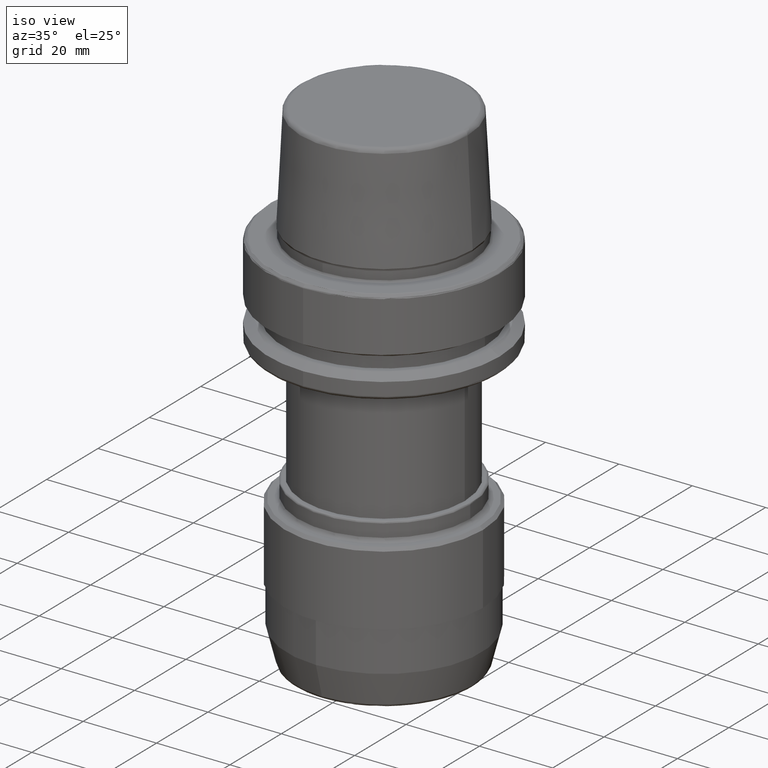
[diagram: clean part render]
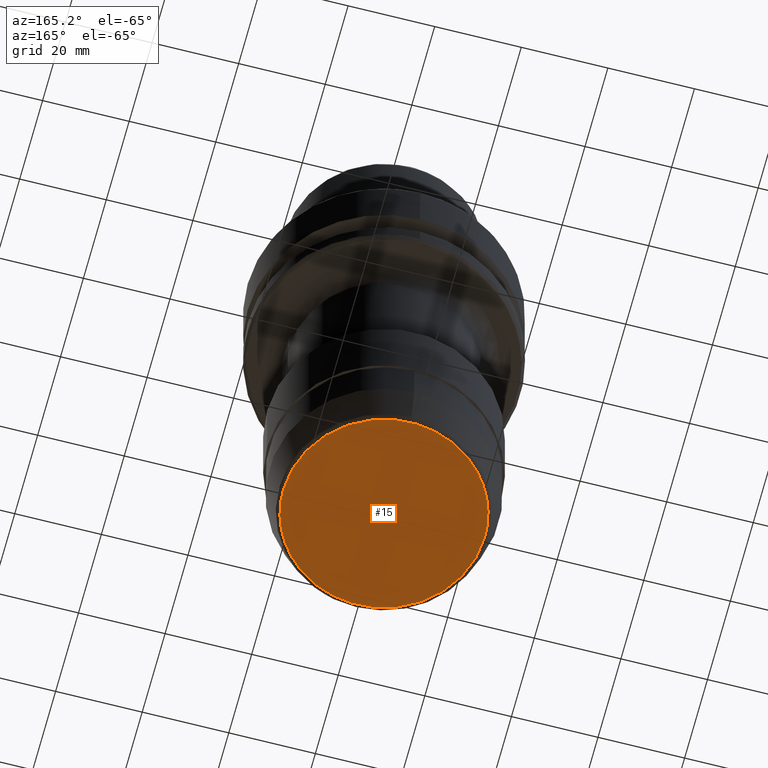
[diagram: tour spotlight — one face highlighted and labeled with its STEP entity id]
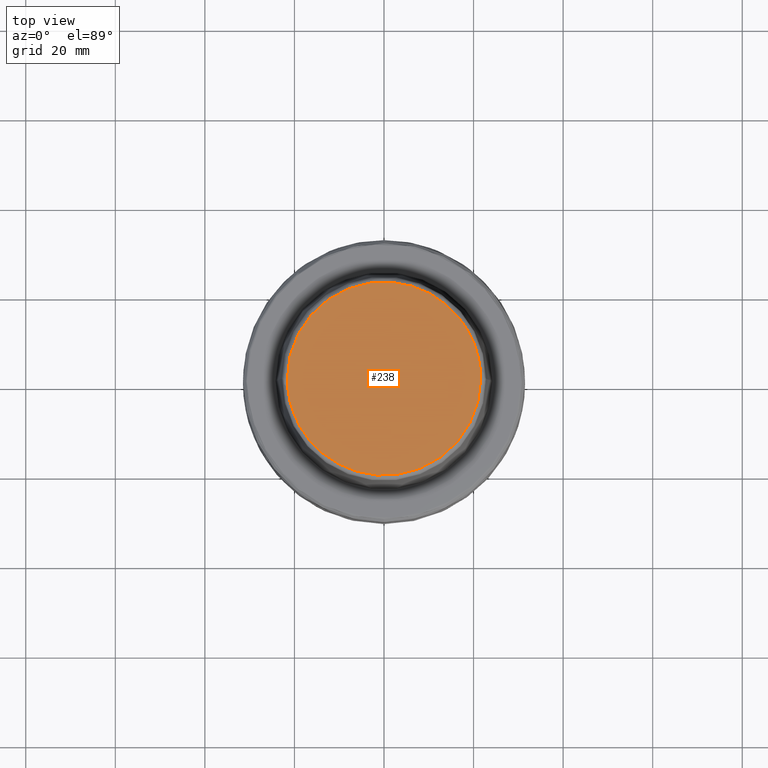
[diagram: tour spotlight — one face highlighted and labeled with its STEP entity id]
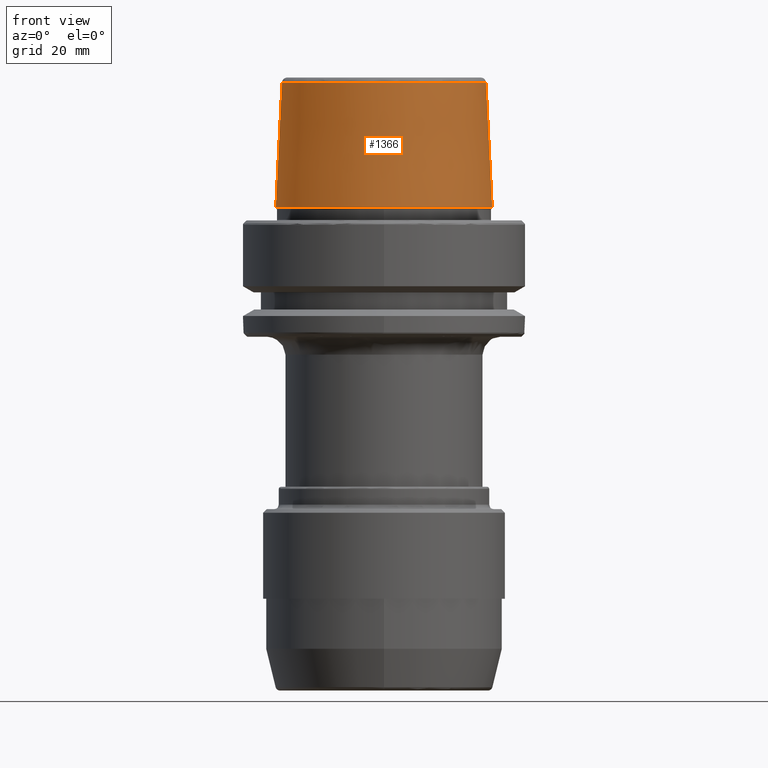
[diagram: tour spotlight — one face highlighted and labeled with its STEP entity id]
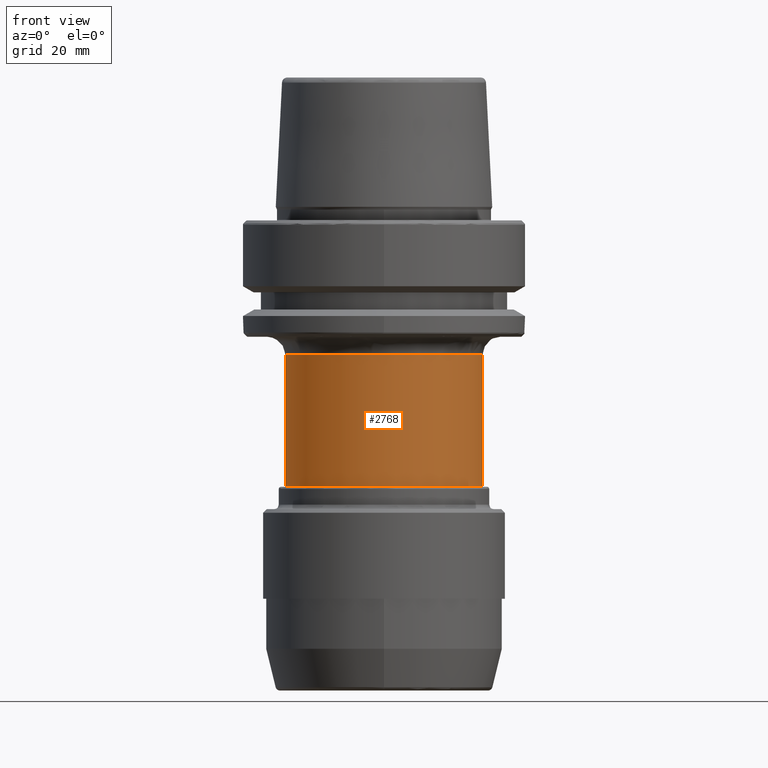
[diagram: tour spotlight — one face highlighted and labeled with its STEP entity id]
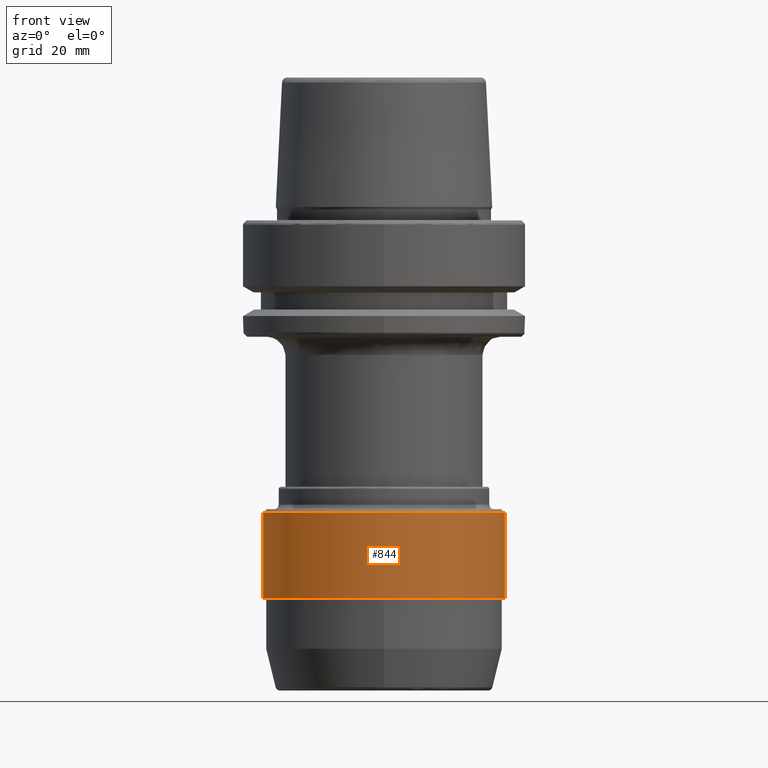
[diagram: tour spotlight — one face highlighted and labeled with its STEP entity id]
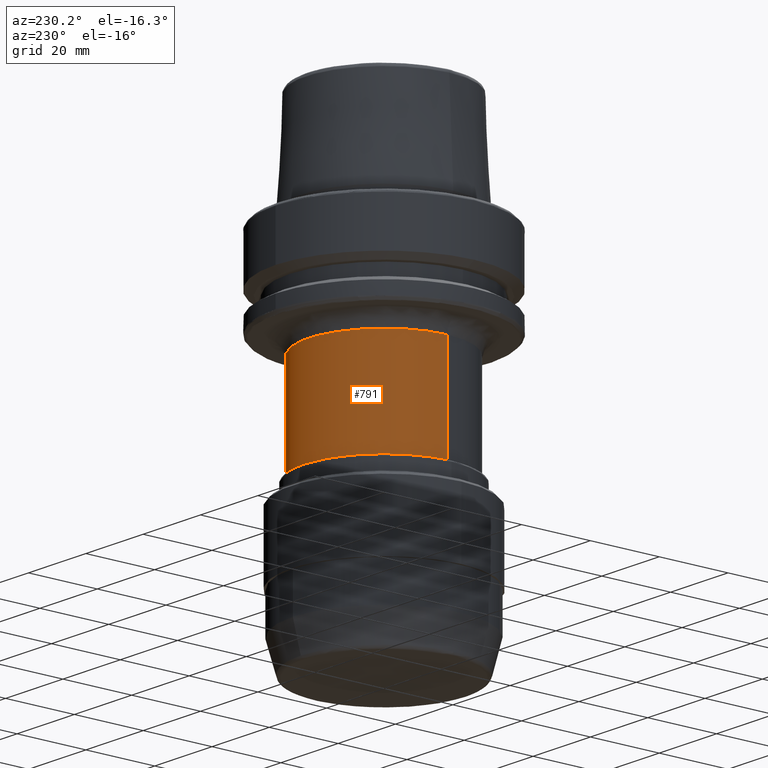
[diagram: tour spotlight — one face highlighted and labeled with its STEP entity id]
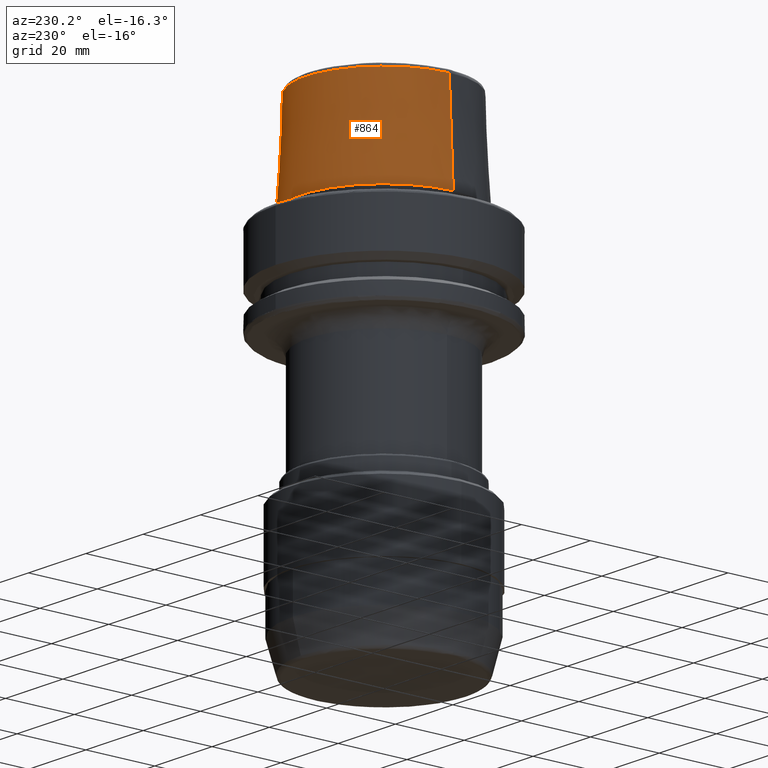
[diagram: tour spotlight — one face highlighted and labeled with its STEP entity id]
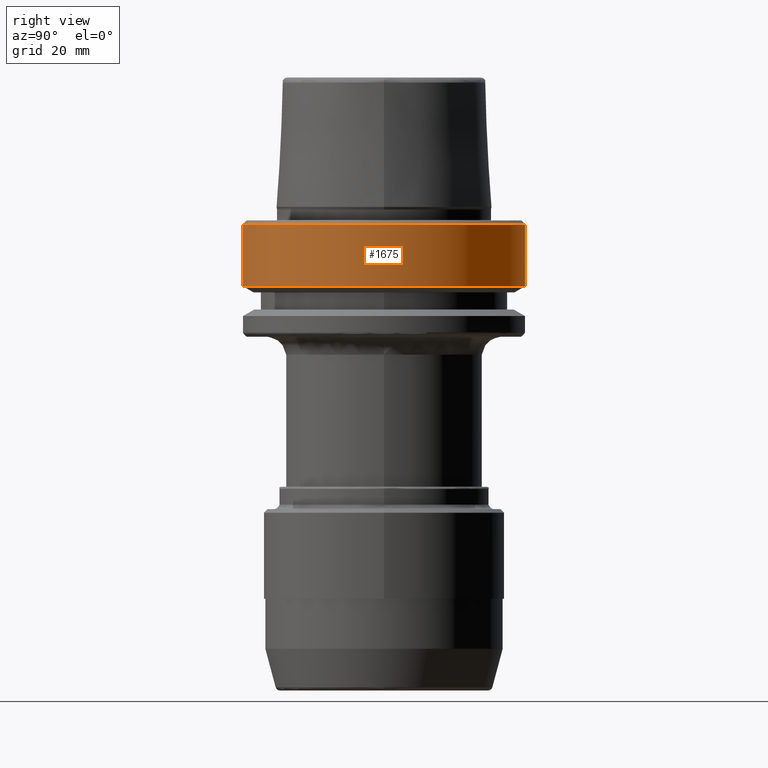
[diagram: tour spotlight — one face highlighted and labeled with its STEP entity id]
A machine part: a face-by-face anatomy tour. The part has 78 B-rep faces; the first image is the clean iso view, then the 8 largest visible faces are spotlighted one at a time (largest first), each with its STEP entity span.

Face 1 — auxiliary view, entity #15. In plain terms, the highlighted planar face has unit normal (0, 0, -1).
Definition (entity closure, byte-faithful):
#15 = ADVANCED_FACE ( 'NONE', ( #1244 ), #693, .T. ) ;
#68 =( BOUNDED_CURVE ( )  B_SPLINE_CURVE ( 3, ( #2413, #439, #1009, #2997 ),
 .UNSPECIFIED., .F., .F. ) 
 B_SPLINE_CURVE_WITH_KNOTS ( ( 4, 4 ),
 ( 0.0000000000000000000, 1.000000000000000000 ),
 .UNSPECIFIED. ) 
 CURVE ( )  GEOMETRIC_REPRESENTATION_ITEM ( )  RATIONAL_B_SPLINE_CURVE ( ( 0.9639010373888321500, 0.3213003457962772500, 0.3213003457962772500, 0.9639010373888321500 ) ) 
 REPRESENTATION_ITEM ( '' )  );
#150 = AXIS2_PLACEMENT_3D ( 'NONE', #480, #1892, #202 ) ;
#202 = DIRECTION ( 'NONE',  ( -1.000000000000000000, 0.0000000000000000000, 0.0000000000000000000 ) ) ;
#439 = CARTESIAN_POINT ( 'NONE',  ( -23.23267301113014600, -46.46534602293296200, -104.9999999997744000 ) ) ;
#480 = CARTESIAN_POINT ( 'NONE',  ( 23.51146508800000500, -23.51146508800000500, -105.0000000000000000 ) ) ;
#588 =( BOUNDED_CURVE ( )  B_SPLINE_CURVE ( 3, ( #2921, #931, #3228, #1494 ),
 .UNSPECIFIED., .F., .F. ) 
 B_SPLINE_CURVE_WITH_KNOTS ( ( 4, 4 ),
 ( 0.0000000000000000000, 1.000000000000000000 ),
 .UNSPECIFIED. ) 
 CURVE ( )  GEOMETRIC_REPRESENTATION_ITEM ( )  RATIONAL_B_SPLINE_CURVE ( ( 0.9639010373888308200, 0.3213003457962767500, 0.3213003457962767500, 0.9639010373888308200 ) ) 
 REPRESENTATION_ITEM ( '' )  );
#693 = PLANE ( 'NONE',  #150 ) ;
#931 = CARTESIAN_POINT ( 'NONE',  ( 23.23267301113015300, 46.46534602293299100, -104.9999999997744600 ) ) ;
#1009 = CARTESIAN_POINT ( 'NONE',  ( 23.23267301113014600, -46.46534602293296200, -104.9999999997744000 ) ) ;
#1024 = VERTEX_POINT ( 'NONE', #3285 ) ;
#1244 = FACE_OUTER_BOUND ( 'NONE', #3448, .T. ) ;
#1494 = CARTESIAN_POINT ( 'NONE',  ( -23.23267300684567300, 0.0000000000000000000, -104.9999999998646400 ) ) ;
#1623 = EDGE_CURVE ( 'NONE', #1024, #2793, #68, .T. ) ;
#1892 = DIRECTION ( 'NONE',  ( 0.0000000000000000000, 0.0000000000000000000, -1.000000000000000000 ) ) ;
#2247 = EDGE_CURVE ( 'NONE', #2793, #1024, #588, .T. ) ;
#2413 = CARTESIAN_POINT ( 'NONE',  ( -23.23267300684566900, 0.0000000000000000000, -104.9999999998646400 ) ) ;
#2650 = ORIENTED_EDGE ( 'NONE', *, *, #1623, .F. ) ;
#2793 = VERTEX_POINT ( 'NONE', #3607 ) ;
#2921 = CARTESIAN_POINT ( 'NONE',  ( 23.23267300684567300, 0.0000000000000000000, -104.9999999998646400 ) ) ;
#2997 = CARTESIAN_POINT ( 'NONE',  ( 23.23267300684566900, 0.0000000000000000000, -104.9999999998646400 ) ) ;
#3228 = CARTESIAN_POINT ( 'NONE',  ( -23.23267301113015300, 46.46534602293299100, -104.9999999997744600 ) ) ;
#3285 = CARTESIAN_POINT ( 'NONE',  ( -23.23267300684566900, 0.0000000000000000000, -104.9999999998646400 ) ) ;
#3448 = EDGE_LOOP ( 'NONE', ( #3467, #2650 ) ) ;
#3467 = ORIENTED_EDGE ( 'NONE', *, *, #2247, .F. ) ;
#3607 = CARTESIAN_POINT ( 'NONE',  ( 23.23267300684566900, 0.0000000000000000000, -104.9999999998646400 ) ) ;

Face 2 — top view, entity #238. In plain terms, the highlighted planar face has unit normal (0, 0, -1).
Definition (entity closure, byte-faithful):
#178 = VERTEX_POINT ( 'NONE', #613 ) ;
#238 = ADVANCED_FACE ( 'NONE', ( #2474 ), #1481, .F. ) ;
#289 = EDGE_CURVE ( 'NONE', #178, #1375, #1982, .T. ) ;
#525 = DIRECTION ( 'NONE',  ( 0.0000000000000000000, 0.0000000000000000000, -1.000000000000000000 ) ) ;
#613 = CARTESIAN_POINT ( 'NONE',  ( -21.58108272221028700, 0.0000000000000000000, 31.89999999979466200 ) ) ;
#643 = CARTESIAN_POINT ( 'NONE',  ( -21.58108272221028700, 0.0000000000000000000, 31.89999999979466200 ) ) ;
#908 = DIRECTION ( 'NONE',  ( -1.000000000000000000, 0.0000000000000000000, 0.0000000000000000000 ) ) ;
#1075 = ORIENTED_EDGE ( 'NONE', *, *, #3572, .F. ) ;
#1375 = VERTEX_POINT ( 'NONE', #1766 ) ;
#1481 = PLANE ( 'NONE',  #1660 ) ;
#1660 = AXIS2_PLACEMENT_3D ( 'NONE', #1970, #525, #908 ) ;
#1724 = CARTESIAN_POINT ( 'NONE',  ( -21.58108272221028300, 0.0000000000000000000, 31.89999999979466200 ) ) ;
#1766 = CARTESIAN_POINT ( 'NONE',  ( 21.58108272221028700, 0.0000000000000000000, 31.89999999979466200 ) ) ;
#1970 = CARTESIAN_POINT ( 'NONE',  ( 21.84005572000000600, -21.84005572000000600, 31.89999999999999900 ) ) ;
#1982 =( BOUNDED_CURVE ( )  B_SPLINE_CURVE ( 3, ( #1724, #3407, #3471, #3005 ),
 .UNSPECIFIED., .F., .F. ) 
 B_SPLINE_CURVE_WITH_KNOTS ( ( 4, 4 ),
 ( 0.0000000000000000000, 1.000000000000000000 ),
 .UNSPECIFIED. ) 
 CURVE ( )  GEOMETRIC_REPRESENTATION_ITEM ( )  RATIONAL_B_SPLINE_CURVE ( ( 0.9580048709100972300, 0.3193349569700321700, 0.3193349569700321700, 0.9580048709100972300 ) ) 
 REPRESENTATION_ITEM ( '' )  );
#2341 = CARTESIAN_POINT ( 'NONE',  ( -21.58108272589980100, -43.16216545265412200, 31.89999999965778300 ) ) ;
#2474 = FACE_OUTER_BOUND ( 'NONE', #3506, .T. ) ;
#3005 = CARTESIAN_POINT ( 'NONE',  ( 21.58108272221028300, 0.0000000000000000000, 31.89999999979466200 ) ) ;
#3128 = ORIENTED_EDGE ( 'NONE', *, *, #289, .F. ) ;
#3217 = CARTESIAN_POINT ( 'NONE',  ( 21.58108272589980100, -43.16216545265412200, 31.89999999965778300 ) ) ;
#3407 = CARTESIAN_POINT ( 'NONE',  ( -21.58108272589979700, 43.16216545265412200, 31.89999999965776900 ) ) ;
#3425 =( BOUNDED_CURVE ( )  B_SPLINE_CURVE ( 3, ( #3513, #3217, #2341, #643 ),
 .UNSPECIFIED., .F., .F. ) 
 B_SPLINE_CURVE_WITH_KNOTS ( ( 4, 4 ),
 ( 0.0000000000000000000, 1.000000000000000000 ),
 .UNSPECIFIED. ) 
 CURVE ( )  GEOMETRIC_REPRESENTATION_ITEM ( )  RATIONAL_B_SPLINE_CURVE ( ( 0.9580048709100960100, 0.3193349569700317800, 0.3193349569700317800, 0.9580048709100960100 ) ) 
 REPRESENTATION_ITEM ( '' )  );
#3471 = CARTESIAN_POINT ( 'NONE',  ( 21.58108272589979700, 43.16216545265412200, 31.89999999965776900 ) ) ;
#3506 = EDGE_LOOP ( 'NONE', ( #1075, #3128 ) ) ;
#3513 = CARTESIAN_POINT ( 'NONE',  ( 21.58108272221028700, 0.0000000000000000000, 31.89999999979466200 ) ) ;
#3572 = EDGE_CURVE ( 'NONE', #1375, #178, #3425, .T. ) ;

Face 3 — front view, entity #1366. In plain terms, the highlighted conical surface has half-angle 2.868 deg.
Definition (entity closure, byte-faithful):
#60 = AXIS2_PLACEMENT_3D ( 'NONE', #2326, #1215, #2882 ) ;
#65 = DIRECTION ( 'NONE',  ( 1.000000000000000000, 0.0000000000000000000, -1.076561891198119100E-016 ) ) ;
#227 = VERTEX_POINT ( 'NONE', #561 ) ;
#228 = ORIENTED_EDGE ( 'NONE', *, *, #3281, .F. ) ;
#460 = CARTESIAN_POINT ( 'NONE',  ( 22.77957961900000300, 2.789693926633063400E-015, 30.76004333299999500 ) ) ;
#561 = CARTESIAN_POINT ( 'NONE',  ( 24.17032625100000200, 2.960011267763439600E-015, 3.000000000000002700 ) ) ;
#641 = CARTESIAN_POINT ( 'NONE',  ( -22.77957961885135400, -1.022730554035613000E-009, 30.76004333299252700 ) ) ;
#686 = EDGE_CURVE ( 'NONE', #752, #706, #860, .T. ) ;
#706 = VERTEX_POINT ( 'NONE', #3203 ) ;
#752 = VERTEX_POINT ( 'NONE', #641 ) ;
#860 = CIRCLE ( 'NONE', #2347, 22.77957961900000300 ) ;
#920 = ORIENTED_EDGE ( 'NONE', *, *, #3479, .T. ) ;
#974 = EDGE_CURVE ( 'NONE', #752, #3003, #1836, .T. ) ;
#1032 = ORIENTED_EDGE ( 'NONE', *, *, #974, .T. ) ;
#1215 = DIRECTION ( 'NONE',  ( 0.0000000000000000000, 0.0000000000000000000, -1.000000000000000000 ) ) ;
#1218 = CARTESIAN_POINT ( 'NONE',  ( 0.0000000000000000000, 0.0000000000000000000, 30.76004333299997700 ) ) ;
#1260 = DIRECTION ( 'NONE',  ( -0.05003611050185009100, 0.0000000000000000000, -0.9987474093312315200 ) ) ;
#1303 = FACE_OUTER_BOUND ( 'NONE', #1943, .T. ) ;
#1366 = ADVANCED_FACE ( 'NONE', ( #1303 ), #3426, .T. ) ;
#1484 = DIRECTION ( 'NONE',  ( -1.000000000000000000, 0.0000000000000000000, 9.138308107476618100E-016 ) ) ;
#1547 = CARTESIAN_POINT ( 'NONE',  ( -22.77957961900000300, 0.0000000000000000000, 30.76004333299999500 ) ) ;
#1748 = DIRECTION ( 'NONE',  ( 0.0000000000000000000, 0.0000000000000000000, 1.000000000000000000 ) ) ;
#1836 = LINE ( 'NONE', #1547, #2588 ) ;
#1855 = DIRECTION ( 'NONE',  ( 0.05003611050185009100, 6.127656256787398800E-018, -0.9987474093312315200 ) ) ;
#1943 = EDGE_LOOP ( 'NONE', ( #228, #2292, #1032, #920 ) ) ;
#2131 = AXIS2_PLACEMENT_3D ( 'NONE', #3499, #1748, #65 ) ;
#2292 = ORIENTED_EDGE ( 'NONE', *, *, #686, .F. ) ;
#2309 = CIRCLE ( 'NONE', #2131, 24.17032625100000200 ) ;
#2326 = CARTESIAN_POINT ( 'NONE',  ( 0.0000000000000000000, 0.0000000000000000000, 30.76004333299999500 ) ) ;
#2347 = AXIS2_PLACEMENT_3D ( 'NONE', #1218, #3215, #1484 ) ;
#2588 = VECTOR ( 'NONE', #1260, 1000.000000000000100 ) ;
#2764 = VECTOR ( 'NONE', #1855, 1000.000000000000100 ) ;
#2882 = DIRECTION ( 'NONE',  ( -1.000000000000000000, 0.0000000000000000000, 0.0000000000000000000 ) ) ;
#3003 = VERTEX_POINT ( 'NONE', #3116 ) ;
#3116 = CARTESIAN_POINT ( 'NONE',  ( -24.17032625100000200, 0.0000000000000000000, 3.000000000000002700 ) ) ;
#3203 = CARTESIAN_POINT ( 'NONE',  ( 22.77957961885135400, -7.008254819992292000E-009, 30.76004333299252700 ) ) ;
#3215 = DIRECTION ( 'NONE',  ( -0.0000000000000000000, -0.0000000000000000000, 1.000000000000000000 ) ) ;
#3281 = EDGE_CURVE ( 'NONE', #706, #227, #3551, .T. ) ;
#3426 = CONICAL_SURFACE ( 'NONE', #60, 22.77957961900000300, 0.05005701256328789300 ) ;
#3479 = EDGE_CURVE ( 'NONE', #3003, #227, #2309, .T. ) ;
#3499 = CARTESIAN_POINT ( 'NONE',  ( 0.0000000000000000000, 0.0000000000000000000, 3.000000000000002700 ) ) ;
#3551 = LINE ( 'NONE', #460, #2764 ) ;

Face 4 — front view, entity #2768. In plain terms, the highlighted cylindrical surface (partial cylindrical patch) has radius 22 mm, axis along (0, -0, 1).
Definition (entity closure, byte-faithful):
#16 = CIRCLE ( 'NONE', #2856, 22.00000000000000000 ) ;
#137 = VERTEX_POINT ( 'NONE', #669 ) ;
#148 = FACE_OUTER_BOUND ( 'NONE', #2965, .T. ) ;
#242 = LINE ( 'NONE', #3703, #2994 ) ;
#363 = ORIENTED_EDGE ( 'NONE', *, *, #2130, .T. ) ;
#597 = AXIS2_PLACEMENT_3D ( 'NONE', #2566, #869, #2865 ) ;
#669 = CARTESIAN_POINT ( 'NONE',  ( -22.00000000006208000, -2.256137713668642800E-009, -29.99999999886374300 ) ) ;
#809 = CYLINDRICAL_SURFACE ( 'NONE', #3409, 22.00000000000000000 ) ;
#869 = DIRECTION ( 'NONE',  ( 0.0000000000000000000, -0.0000000000000000000, -1.000000000000000000 ) ) ;
#916 = CARTESIAN_POINT ( 'NONE',  ( -22.00000000000000000, 2.694222958124176800E-015, -59.50000000000000700 ) ) ;
#1129 = CIRCLE ( 'NONE', #597, 22.00000000008277100 ) ;
#1357 = EDGE_CURVE ( 'NONE', #3298, #137, #2047, .T. ) ;
#1459 = ORIENTED_EDGE ( 'NONE', *, *, #2014, .T. ) ;
#1556 = DIRECTION ( 'NONE',  ( -0.0000000000000000000, 0.0000000000000000000, -1.000000000000000000 ) ) ;
#1571 = CARTESIAN_POINT ( 'NONE',  ( 0.0000000000000000000, 0.0000000000000000000, -59.50000000000000700 ) ) ;
#2014 = EDGE_CURVE ( 'NONE', #3224, #3262, #242, .T. ) ;
#2047 = LINE ( 'NONE', #916, #2810 ) ;
#2122 = CARTESIAN_POINT ( 'NONE',  ( 22.00000000006207700, -9.877299127160631300E-010, -29.99999999848497700 ) ) ;
#2130 = EDGE_CURVE ( 'NONE', #3262, #137, #1129, .T. ) ;
#2528 = ORIENTED_EDGE ( 'NONE', *, *, #1357, .F. ) ;
#2566 = CARTESIAN_POINT ( 'NONE',  ( 0.0000000000000000000, 0.0000000000000000000, -29.99999999848498100 ) ) ;
#2768 = ADVANCED_FACE ( 'NONE', ( #148 ), #809, .T. ) ;
#2810 = VECTOR ( 'NONE', #2907, 1000.000000000000000 ) ;
#2831 = ORIENTED_EDGE ( 'NONE', *, *, #3202, .F. ) ;
#2833 = DIRECTION ( 'NONE',  ( 0.0000000000000000000, -0.0000000000000000000, 1.000000000000000000 ) ) ;
#2856 = AXIS2_PLACEMENT_3D ( 'NONE', #3292, #1556, #3583 ) ;
#2865 = DIRECTION ( 'NONE',  ( -1.000000000000000000, 0.0000000000000000000, 0.0000000000000000000 ) ) ;
#2907 = DIRECTION ( 'NONE',  ( 0.0000000000000000000, -0.0000000000000000000, 1.000000000000000000 ) ) ;
#2965 = EDGE_LOOP ( 'NONE', ( #2528, #2831, #1459, #363 ) ) ;
#2982 = CARTESIAN_POINT ( 'NONE',  ( 22.00000000000000000, 0.0000000000000000000, -59.50000000000000700 ) ) ;
#2994 = VECTOR ( 'NONE', #2833, 1000.000000000000000 ) ;
#3202 = EDGE_CURVE ( 'NONE', #3224, #3298, #16, .T. ) ;
#3224 = VERTEX_POINT ( 'NONE', #2982 ) ;
#3262 = VERTEX_POINT ( 'NONE', #2122 ) ;
#3292 = CARTESIAN_POINT ( 'NONE',  ( 0.0000000000000000000, 0.0000000000000000000, -59.50000000000000700 ) ) ;
#3298 = VERTEX_POINT ( 'NONE', #3326 ) ;
#3326 = CARTESIAN_POINT ( 'NONE',  ( -22.00000000000000000, 2.694222958124176800E-015, -59.50000000000000700 ) ) ;
#3409 = AXIS2_PLACEMENT_3D ( 'NONE', #1571, #3588, #3599 ) ;
#3583 = DIRECTION ( 'NONE',  ( 1.000000000000000000, 0.0000000000000000000, 0.0000000000000000000 ) ) ;
#3588 = DIRECTION ( 'NONE',  ( 0.0000000000000000000, -0.0000000000000000000, 1.000000000000000000 ) ) ;
#3599 = DIRECTION ( 'NONE',  ( 1.000000000000000000, 0.0000000000000000000, 0.0000000000000000000 ) ) ;
#3703 = CARTESIAN_POINT ( 'NONE',  ( 22.00000000000000000, 0.0000000000000000000, -59.50000000000000700 ) ) ;

Face 5 — front view, entity #844. In plain terms, the highlighted cylindrical surface (partial cylindrical patch) has radius 27 mm, axis along (0, 0, 1).
Definition (entity closure, byte-faithful):
#29 = EDGE_CURVE ( 'NONE', #1419, #3459, #3454, .T. ) ;
#186 = ORIENTED_EDGE ( 'NONE', *, *, #3172, .F. ) ;
#304 = DIRECTION ( 'NONE',  ( 0.0000000000000000000, 0.0000000000000000000, 1.000000000000000000 ) ) ;
#376 = CARTESIAN_POINT ( 'NONE',  ( 27.00000000000000000, -3.566536934050437400E-030, -84.50000000000000000 ) ) ;
#475 = ORIENTED_EDGE ( 'NONE', *, *, #2845, .T. ) ;
#512 = DIRECTION ( 'NONE',  ( 0.0000000000000000000, 0.0000000000000000000, -1.000000000000000000 ) ) ;
#602 = CARTESIAN_POINT ( 'NONE',  ( 27.00000000000000000, 0.0000000000000000000, -71.00000000000001400 ) ) ;
#632 = AXIS2_PLACEMENT_3D ( 'NONE', #2196, #512, #2491 ) ;
#708 = EDGE_LOOP ( 'NONE', ( #186, #1712, #1018, #475 ) ) ;
#844 = ADVANCED_FACE ( 'NONE', ( #3478 ), #1178, .T. ) ;
#870 = CARTESIAN_POINT ( 'NONE',  ( 0.0000000000000000000, 0.0000000000000000000, -71.00000000000001400 ) ) ;
#979 = DIRECTION ( 'NONE',  ( 0.0000000000000000000, 0.0000000000000000000, 1.000000000000000000 ) ) ;
#1018 = ORIENTED_EDGE ( 'NONE', *, *, #3079, .T. ) ;
#1178 = CYLINDRICAL_SURFACE ( 'NONE', #1334, 27.00000000000000000 ) ;
#1334 = AXIS2_PLACEMENT_3D ( 'NONE', #870, #304, #3149 ) ;
#1409 = DIRECTION ( 'NONE',  ( 0.0000000000000000000, -1.000000000000000000, -5.139921410301650800E-016 ) ) ;
#1419 = VERTEX_POINT ( 'NONE', #376 ) ;
#1608 = CARTESIAN_POINT ( 'NONE',  ( 0.0000000000000000000, -3.202522922334777900E-040, -84.50000000000000000 ) ) ;
#1700 = CARTESIAN_POINT ( 'NONE',  ( -27.00000000000000000, 3.306546357697853700E-015, -65.29999999999991200 ) ) ;
#1712 = ORIENTED_EDGE ( 'NONE', *, *, #29, .F. ) ;
#1779 = LINE ( 'NONE', #602, #3322 ) ;
#1793 = CARTESIAN_POINT ( 'NONE',  ( -27.00000000000000000, 3.306546357697853700E-015, -71.00000000000001400 ) ) ;
#2034 = VERTEX_POINT ( 'NONE', #1700 ) ;
#2101 = CARTESIAN_POINT ( 'NONE',  ( 27.00000000000000000, 0.0000000000000000000, -65.29999999999991200 ) ) ;
#2196 = CARTESIAN_POINT ( 'NONE',  ( 0.0000000000000000000, 0.0000000000000000000, -65.29999999999991200 ) ) ;
#2268 = LINE ( 'NONE', #1793, #3041 ) ;
#2286 = CARTESIAN_POINT ( 'NONE',  ( -27.00000000000000000, 3.306546357697850200E-015, -84.50000000000000000 ) ) ;
#2313 = CIRCLE ( 'NONE', #632, 27.00000000000000000 ) ;
#2346 = VERTEX_POINT ( 'NONE', #2101 ) ;
#2491 = DIRECTION ( 'NONE',  ( -1.000000000000000000, 0.0000000000000000000, -3.083952846180990500E-015 ) ) ;
#2590 = DIRECTION ( 'NONE',  ( 0.0000000000000000000, 0.0000000000000000000, 1.000000000000000000 ) ) ;
#2845 = EDGE_CURVE ( 'NONE', #2346, #2034, #2313, .T. ) ;
#3041 = VECTOR ( 'NONE', #979, 1000.000000000000000 ) ;
#3079 = EDGE_CURVE ( 'NONE', #1419, #2346, #1779, .T. ) ;
#3133 = DIRECTION ( 'NONE',  ( -0.0000000000000000000, 2.569960705150825900E-016, -1.000000000000000000 ) ) ;
#3149 = DIRECTION ( 'NONE',  ( 1.000000000000000000, 0.0000000000000000000, 0.0000000000000000000 ) ) ;
#3172 = EDGE_CURVE ( 'NONE', #3459, #2034, #2268, .T. ) ;
#3322 = VECTOR ( 'NONE', #2590, 1000.000000000000000 ) ;
#3454 = CIRCLE ( 'NONE', #3670, 27.00000000000000000 ) ;
#3459 = VERTEX_POINT ( 'NONE', #2286 ) ;
#3478 = FACE_OUTER_BOUND ( 'NONE', #708, .T. ) ;
#3670 = AXIS2_PLACEMENT_3D ( 'NONE', #1608, #3133, #1409 ) ;

Face 6 — auxiliary view, entity #791. In plain terms, the highlighted cylindrical surface (partial cylindrical patch) has radius 22 mm, axis along (0, -0, 1).
Definition (entity closure, byte-faithful):
#102 = CIRCLE ( 'NONE', #308, 22.00000000000000000 ) ;
#137 = VERTEX_POINT ( 'NONE', #669 ) ;
#242 = LINE ( 'NONE', #3703, #2994 ) ;
#308 = AXIS2_PLACEMENT_3D ( 'NONE', #3008, #1301, #3314 ) ;
#313 = ORIENTED_EDGE ( 'NONE', *, *, #2546, .T. ) ;
#334 = AXIS2_PLACEMENT_3D ( 'NONE', #630, #2611, #917 ) ;
#380 = DIRECTION ( 'NONE',  ( 0.0000000000000000000, -0.0000000000000000000, 1.000000000000000000 ) ) ;
#387 = AXIS2_PLACEMENT_3D ( 'NONE', #2355, #380, #3229 ) ;
#618 = ORIENTED_EDGE ( 'NONE', *, *, #2014, .F. ) ;
#630 = CARTESIAN_POINT ( 'NONE',  ( 0.0000000000000000000, 0.0000000000000000000, -29.99999999848498100 ) ) ;
#669 = CARTESIAN_POINT ( 'NONE',  ( -22.00000000006208000, -2.256137713668642800E-009, -29.99999999886374300 ) ) ;
#791 = ADVANCED_FACE ( 'NONE', ( #3646 ), #3562, .T. ) ;
#916 = CARTESIAN_POINT ( 'NONE',  ( -22.00000000000000000, 2.694222958124176800E-015, -59.50000000000000700 ) ) ;
#917 = DIRECTION ( 'NONE',  ( -1.000000000000000000, 0.0000000000000000000, 0.0000000000000000000 ) ) ;
#1301 = DIRECTION ( 'NONE',  ( -0.0000000000000000000, 0.0000000000000000000, -1.000000000000000000 ) ) ;
#1357 = EDGE_CURVE ( 'NONE', #3298, #137, #2047, .T. ) ;
#2014 = EDGE_CURVE ( 'NONE', #3224, #3262, #242, .T. ) ;
#2047 = LINE ( 'NONE', #916, #2810 ) ;
#2122 = CARTESIAN_POINT ( 'NONE',  ( 22.00000000006207700, -9.877299127160631300E-010, -29.99999999848497700 ) ) ;
#2355 = CARTESIAN_POINT ( 'NONE',  ( 0.0000000000000000000, 0.0000000000000000000, -59.50000000000000700 ) ) ;
#2546 = EDGE_CURVE ( 'NONE', #137, #3262, #3377, .T. ) ;
#2611 = DIRECTION ( 'NONE',  ( -0.0000000000000000000, 0.0000000000000000000, -1.000000000000000000 ) ) ;
#2810 = VECTOR ( 'NONE', #2907, 1000.000000000000000 ) ;
#2833 = DIRECTION ( 'NONE',  ( 0.0000000000000000000, -0.0000000000000000000, 1.000000000000000000 ) ) ;
#2848 = ORIENTED_EDGE ( 'NONE', *, *, #3250, .F. ) ;
#2907 = DIRECTION ( 'NONE',  ( 0.0000000000000000000, -0.0000000000000000000, 1.000000000000000000 ) ) ;
#2982 = CARTESIAN_POINT ( 'NONE',  ( 22.00000000000000000, 0.0000000000000000000, -59.50000000000000700 ) ) ;
#2994 = VECTOR ( 'NONE', #2833, 1000.000000000000000 ) ;
#3008 = CARTESIAN_POINT ( 'NONE',  ( 0.0000000000000000000, 0.0000000000000000000, -59.50000000000000700 ) ) ;
#3073 = EDGE_LOOP ( 'NONE', ( #2848, #3208, #313, #618 ) ) ;
#3208 = ORIENTED_EDGE ( 'NONE', *, *, #1357, .T. ) ;
#3224 = VERTEX_POINT ( 'NONE', #2982 ) ;
#3229 = DIRECTION ( 'NONE',  ( 1.000000000000000000, 0.0000000000000000000, 0.0000000000000000000 ) ) ;
#3250 = EDGE_CURVE ( 'NONE', #3298, #3224, #102, .T. ) ;
#3262 = VERTEX_POINT ( 'NONE', #2122 ) ;
#3298 = VERTEX_POINT ( 'NONE', #3326 ) ;
#3314 = DIRECTION ( 'NONE',  ( 1.000000000000000000, 0.0000000000000000000, 0.0000000000000000000 ) ) ;
#3326 = CARTESIAN_POINT ( 'NONE',  ( -22.00000000000000000, 2.694222958124176800E-015, -59.50000000000000700 ) ) ;
#3377 = CIRCLE ( 'NONE', #334, 22.00000000008277100 ) ;
#3562 = CYLINDRICAL_SURFACE ( 'NONE', #387, 22.00000000000000000 ) ;
#3646 = FACE_OUTER_BOUND ( 'NONE', #3073, .T. ) ;
#3703 = CARTESIAN_POINT ( 'NONE',  ( 22.00000000000000000, 0.0000000000000000000, -59.50000000000000700 ) ) ;

Face 7 — auxiliary view, entity #864. In plain terms, the highlighted conical surface has half-angle 2.868 deg.
Definition (entity closure, byte-faithful):
#74 = DIRECTION ( 'NONE',  ( 0.0000000000000000000, 0.0000000000000000000, 1.000000000000000000 ) ) ;
#118 = CARTESIAN_POINT ( 'NONE',  ( 0.0000000000000000000, 0.0000000000000000000, 30.76004333299999500 ) ) ;
#227 = VERTEX_POINT ( 'NONE', #561 ) ;
#332 = CONICAL_SURFACE ( 'NONE', #1708, 22.77957961900000300, 0.05005701256328789300 ) ;
#361 = ORIENTED_EDGE ( 'NONE', *, *, #784, .F. ) ;
#460 = CARTESIAN_POINT ( 'NONE',  ( 22.77957961900000300, 2.789693926633063400E-015, 30.76004333299999500 ) ) ;
#561 = CARTESIAN_POINT ( 'NONE',  ( 24.17032625100000200, 2.960011267763439600E-015, 3.000000000000002700 ) ) ;
#641 = CARTESIAN_POINT ( 'NONE',  ( -22.77957961885135400, -1.022730554035613000E-009, 30.76004333299252700 ) ) ;
#655 = CARTESIAN_POINT ( 'NONE',  ( 0.0000000000000000000, 0.0000000000000000000, 30.76004333299997700 ) ) ;
#671 = DIRECTION ( 'NONE',  ( 0.0000000000000000000, 0.0000000000000000000, -1.000000000000000000 ) ) ;
#706 = VERTEX_POINT ( 'NONE', #3203 ) ;
#716 = EDGE_LOOP ( 'NONE', ( #361, #3585, #2569, #3597 ) ) ;
#752 = VERTEX_POINT ( 'NONE', #641 ) ;
#784 = EDGE_CURVE ( 'NONE', #706, #752, #2182, .T. ) ;
#805 = CIRCLE ( 'NONE', #2711, 24.17032625100000200 ) ;
#864 = ADVANCED_FACE ( 'NONE', ( #2773 ), #332, .T. ) ;
#946 = DIRECTION ( 'NONE',  ( -1.000000000000000000, 8.881784197001252300E-016, 9.138308107476618100E-016 ) ) ;
#974 = EDGE_CURVE ( 'NONE', #752, #3003, #1836, .T. ) ;
#1260 = DIRECTION ( 'NONE',  ( -0.05003611050185009100, 0.0000000000000000000, -0.9987474093312315200 ) ) ;
#1525 = DIRECTION ( 'NONE',  ( -1.000000000000000000, 0.0000000000000000000, 0.0000000000000000000 ) ) ;
#1547 = CARTESIAN_POINT ( 'NONE',  ( -22.77957961900000300, 0.0000000000000000000, 30.76004333299999500 ) ) ;
#1708 = AXIS2_PLACEMENT_3D ( 'NONE', #118, #671, #1525 ) ;
#1760 = CARTESIAN_POINT ( 'NONE',  ( 0.0000000000000000000, 0.0000000000000000000, 3.000000000000002700 ) ) ;
#1836 = LINE ( 'NONE', #1547, #2588 ) ;
#1855 = DIRECTION ( 'NONE',  ( 0.05003611050185009100, 6.127656256787398800E-018, -0.9987474093312315200 ) ) ;
#2043 = DIRECTION ( 'NONE',  ( 1.000000000000000000, 0.0000000000000000000, -1.076561891198119100E-016 ) ) ;
#2182 = CIRCLE ( 'NONE', #3336, 22.77957961900000300 ) ;
#2569 = ORIENTED_EDGE ( 'NONE', *, *, #3525, .T. ) ;
#2588 = VECTOR ( 'NONE', #1260, 1000.000000000000100 ) ;
#2636 = DIRECTION ( 'NONE',  ( -0.0000000000000000000, -0.0000000000000000000, 1.000000000000000000 ) ) ;
#2711 = AXIS2_PLACEMENT_3D ( 'NONE', #1760, #74, #2043 ) ;
#2764 = VECTOR ( 'NONE', #1855, 1000.000000000000100 ) ;
#2773 = FACE_OUTER_BOUND ( 'NONE', #716, .T. ) ;
#3003 = VERTEX_POINT ( 'NONE', #3116 ) ;
#3116 = CARTESIAN_POINT ( 'NONE',  ( -24.17032625100000200, 0.0000000000000000000, 3.000000000000002700 ) ) ;
#3203 = CARTESIAN_POINT ( 'NONE',  ( 22.77957961885135400, -7.008254819992292000E-009, 30.76004333299252700 ) ) ;
#3281 = EDGE_CURVE ( 'NONE', #706, #227, #3551, .T. ) ;
#3336 = AXIS2_PLACEMENT_3D ( 'NONE', #655, #2636, #946 ) ;
#3525 = EDGE_CURVE ( 'NONE', #227, #3003, #805, .T. ) ;
#3551 = LINE ( 'NONE', #460, #2764 ) ;
#3585 = ORIENTED_EDGE ( 'NONE', *, *, #3281, .T. ) ;
#3597 = ORIENTED_EDGE ( 'NONE', *, *, #974, .F. ) ;

Face 8 — right view, entity #1675. In plain terms, the highlighted cylindrical surface (partial cylindrical patch) has radius 31.5 mm, axis along (0, -0, 1).
Definition (entity closure, byte-faithful):
#13 = EDGE_CURVE ( 'NONE', #356, #605, #1101, .T. ) ;
#23 = FACE_OUTER_BOUND ( 'NONE', #888, .T. ) ;
#50 = ORIENTED_EDGE ( 'NONE', *, *, #1817, .T. ) ;
#241 = DIRECTION ( 'NONE',  ( -0.0000000000000000000, -0.0000000000000000000, 1.000000000000000000 ) ) ;
#321 = VERTEX_POINT ( 'NONE', #1299 ) ;
#356 = VERTEX_POINT ( 'NONE', #2271 ) ;
#503 = CIRCLE ( 'NONE', #3038, 31.49999999999989700 ) ;
#534 = CARTESIAN_POINT ( 'NONE',  ( 0.0000000000000000000, 0.0000000000000000000, -0.9656854250000013200 ) ) ;
#605 = VERTEX_POINT ( 'NONE', #2319 ) ;
#657 = CARTESIAN_POINT ( 'NONE',  ( 0.0000000000000000000, -31.50000000000000000, -14.62250092700000100 ) ) ;
#755 = CARTESIAN_POINT ( 'NONE',  ( 0.0000000000000000000, 0.0000000000000000000, -0.9656854250000013200 ) ) ;
#818 = DIRECTION ( 'NONE',  ( 1.000000000000000000, 0.0000000000000000000, 3.786102824552555300E-017 ) ) ;
#888 = EDGE_LOOP ( 'NONE', ( #969, #3301, #1825, #3161, #1250, #50 ) ) ;
#947 = DIRECTION ( 'NONE',  ( 0.0000000000000000000, -2.753529326947312600E-017, 1.000000000000000000 ) ) ;
#969 = ORIENTED_EDGE ( 'NONE', *, *, #1424, .T. ) ;
#1007 = AXIS2_PLACEMENT_3D ( 'NONE', #1229, #3235, #1508 ) ;
#1101 = CIRCLE ( 'NONE', #3290, 31.50000000000000000 ) ;
#1148 = VERTEX_POINT ( 'NONE', #3107 ) ;
#1229 = CARTESIAN_POINT ( 'NONE',  ( 0.0000000000000000000, 0.0000000000000000000, -14.72017764032655600 ) ) ;
#1250 = ORIENTED_EDGE ( 'NONE', *, *, #3593, .F. ) ;
#1299 = CARTESIAN_POINT ( 'NONE',  ( 3.857637417314162700E-015, 31.50000000000000000, -0.9656854250000013200 ) ) ;
#1314 = DIRECTION ( 'NONE',  ( 0.0000000000000000000, -2.753529326947312600E-017, 1.000000000000000000 ) ) ;
#1424 = EDGE_CURVE ( 'NONE', #1148, #1771, #1877, .T. ) ;
#1480 = DIRECTION ( 'NONE',  ( 0.0000000000000000000, -2.753529326947312600E-017, 1.000000000000000000 ) ) ;
#1508 = DIRECTION ( 'NONE',  ( 1.000000000000000000, 0.0000000000000000000, 0.0000000000000000000 ) ) ;
#1675 = ADVANCED_FACE ( 'NONE', ( #23 ), #2090, .T. ) ;
#1686 = AXIS2_PLACEMENT_3D ( 'NONE', #2432, #1314, #1870 ) ;
#1691 = LINE ( 'NONE', #3210, #3227 ) ;
#1771 = VERTEX_POINT ( 'NONE', #3642 ) ;
#1817 = EDGE_CURVE ( 'NONE', #1858, #1148, #503, .T. ) ;
#1825 = ORIENTED_EDGE ( 'NONE', *, *, #1869, .F. ) ;
#1858 = VERTEX_POINT ( 'NONE', #3678 ) ;
#1869 = EDGE_CURVE ( 'NONE', #605, #321, #1922, .T. ) ;
#1870 = DIRECTION ( 'NONE',  ( 0.0000000000000000000, -1.000000000000000000, 0.0000000000000000000 ) ) ;
#1877 = CIRCLE ( 'NONE', #1007, 31.49999999999989700 ) ;
#1922 = CIRCLE ( 'NONE', #3440, 31.50000000000000000 ) ;
#1931 = CARTESIAN_POINT ( 'NONE',  ( 0.0000000000000000000, 0.0000000000000000000, -14.72017764032655600 ) ) ;
#2090 = CYLINDRICAL_SURFACE ( 'NONE', #1686, 31.50000000000000000 ) ;
#2207 = DIRECTION ( 'NONE',  ( 1.000000000000000000, 0.0000000000000000000, 0.0000000000000000000 ) ) ;
#2271 = CARTESIAN_POINT ( 'NONE',  ( 0.0000000000000000000, -31.50000000000000000, -0.9656854250000013200 ) ) ;
#2319 = CARTESIAN_POINT ( 'NONE',  ( 31.50000000000453000, -2.828499295505090300E-009, -0.9656854250064806900 ) ) ;
#2432 = CARTESIAN_POINT ( 'NONE',  ( 0.0000000000000000000, 0.0000000000000000000, -14.62250092700000100 ) ) ;
#2457 = DIRECTION ( 'NONE',  ( 0.0000000000000000000, 0.0000000000000000000, 1.000000000000000000 ) ) ;
#2509 = DIRECTION ( 'NONE',  ( 0.0000000000000000000, 0.0000000000000000000, 1.000000000000000000 ) ) ;
#2718 = VECTOR ( 'NONE', #947, 1000.000000000000000 ) ;
#3038 = AXIS2_PLACEMENT_3D ( 'NONE', #1931, #241, #2207 ) ;
#3102 = EDGE_CURVE ( 'NONE', #1771, #321, #1691, .T. ) ;
#3107 = CARTESIAN_POINT ( 'NONE',  ( 31.49999999999989700, 0.0000000000000000000, -14.72017764032655600 ) ) ;
#3161 = ORIENTED_EDGE ( 'NONE', *, *, #13, .F. ) ;
#3210 = CARTESIAN_POINT ( 'NONE',  ( 3.857637417314162700E-015, 31.50000000000000000, -14.62250092700000100 ) ) ;
#3227 = VECTOR ( 'NONE', #1480, 1000.000000000000000 ) ;
#3235 = DIRECTION ( 'NONE',  ( -0.0000000000000000000, -0.0000000000000000000, 1.000000000000000000 ) ) ;
#3290 = AXIS2_PLACEMENT_3D ( 'NONE', #755, #2457, #3629 ) ;
#3301 = ORIENTED_EDGE ( 'NONE', *, *, #3102, .T. ) ;
#3440 = AXIS2_PLACEMENT_3D ( 'NONE', #534, #2509, #818 ) ;
#3514 = LINE ( 'NONE', #657, #2718 ) ;
#3593 = EDGE_CURVE ( 'NONE', #1858, #356, #3514, .T. ) ;
#3629 = DIRECTION ( 'NONE',  ( 1.000000000000000000, 0.0000000000000000000, 3.786102824552555300E-017 ) ) ;
#3642 = CARTESIAN_POINT ( 'NONE',  ( 3.857637417314156400E-015, 31.49999999999989700, -14.72017764032655600 ) ) ;
#3678 = CARTESIAN_POINT ( 'NONE',  ( 0.0000000000000000000, -31.49999999999989700, -14.72017764032655600 ) ) ;